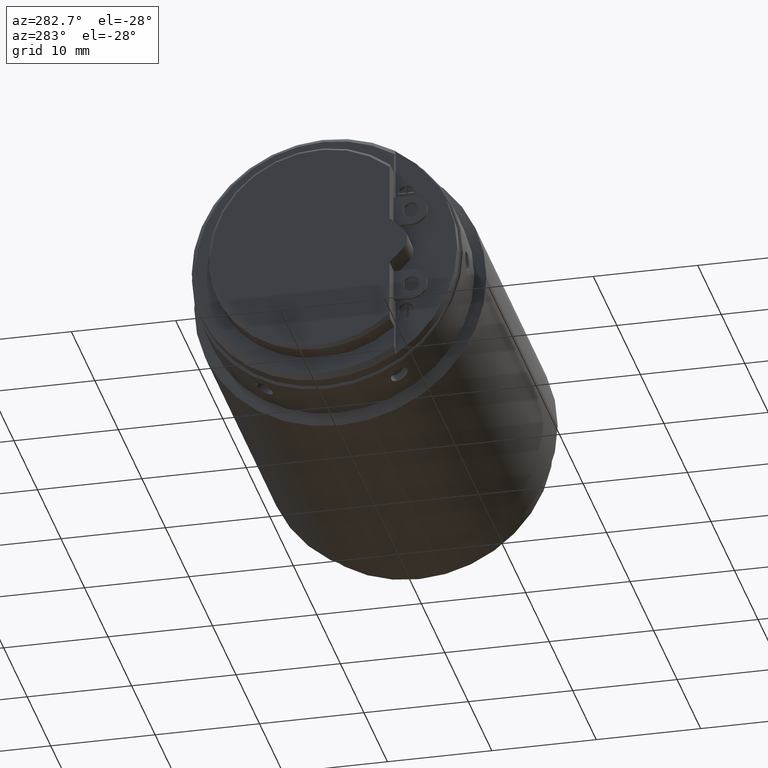
[diagram: clean part render]
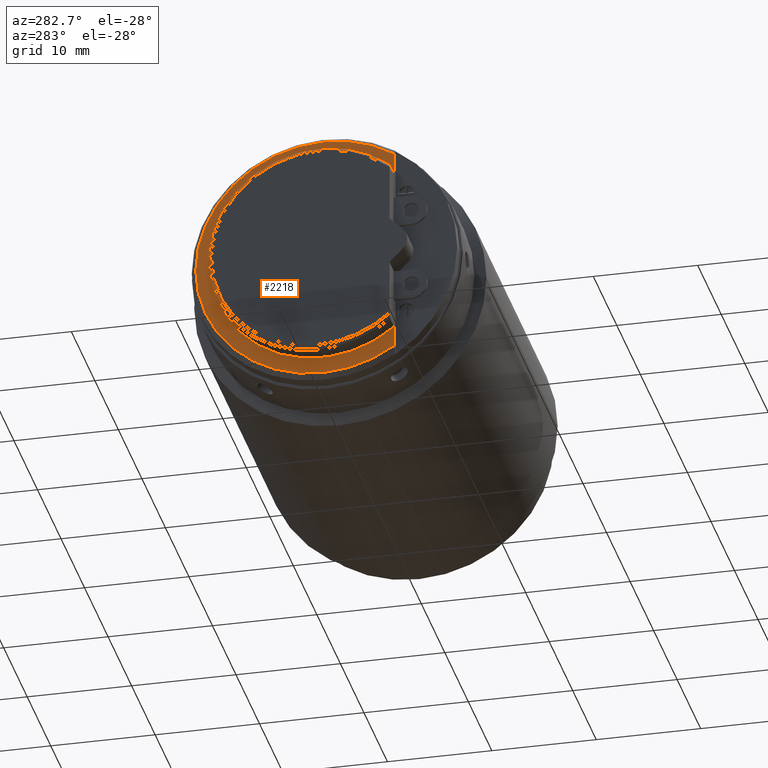
[diagram: same view with one face highlighted and labeled with its STEP entity id]
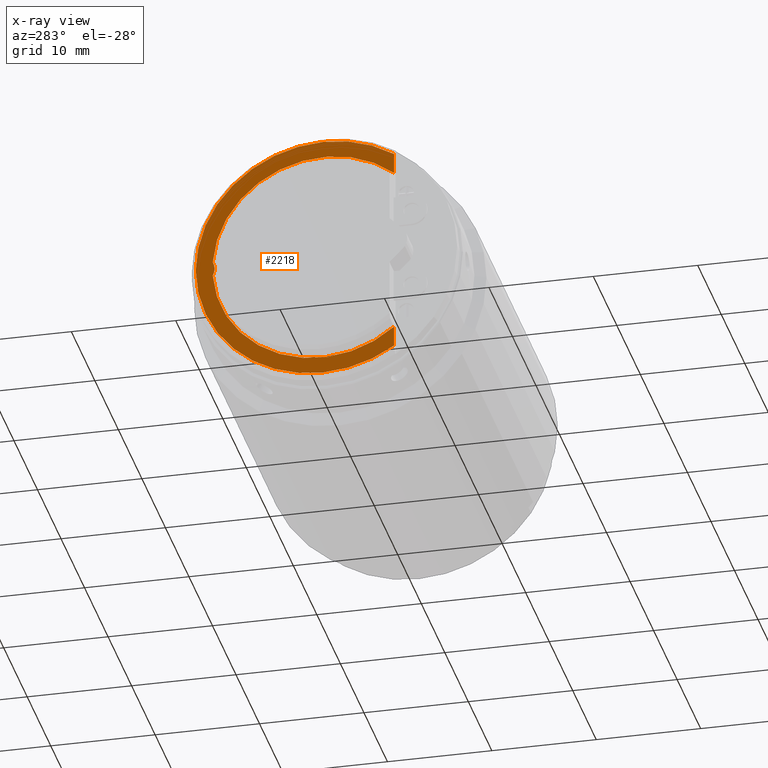
[diagram: x-ray of the same camera — body ghosted, the highlighted face saturated]
A machine part, auxiliary view. The second image highlights one B-rep face of the part: STEP entity #2218.
The next image is the same camera in x-ray: the body ghosted, the highlighted face saturated — about 0% of this face is hidden behind the body in this view.
In plain terms, the highlighted planar face has unit normal (1, 0, 0).
Its self-contained STEP definition (entity closure, byte-faithful):
#31=DIRECTION('',(-9.092667925861E-8,2.757882106921E-7,1.E0));
#32=VECTOR('',#31,1.997745590700E0);
#33=CARTESIAN_POINT('',(-1.7E0,-6.8E0,8.131420370068E0));
#34=LINE('',#33,#32);
#80=CARTESIAN_POINT('',(-1.7E0,0.E0,0.E0));
#81=DIRECTION('',(-1.E0,0.E0,0.E0));
#82=DIRECTION('',(0.E0,-6.415094339623E-1,7.671151452927E-1));
#83=AXIS2_PLACEMENT_3D('',#80,#81,#82);
#85=CARTESIAN_POINT('',(-1.7E0,1.19E1,0.E0));
#86=DIRECTION('',(1.E0,0.E0,0.E0));
#87=DIRECTION('',(0.E0,-8.823529411767E-1,4.705882352938E-1));
#88=AXIS2_PLACEMENT_3D('',#85,#86,#87);
#90=CARTESIAN_POINT('',(-1.7E0,0.E0,0.E0));
#91=DIRECTION('',(-1.E0,0.E0,0.E0));
#92=DIRECTION('',(0.E0,9.977802441731E-1,-6.659267480570E-2));
#93=AXIS2_PLACEMENT_3D('',#90,#91,#92);
#95=DIRECTION('',(1.527810518957E-7,-3.005431658541E-13,-1.E0));
#96=VECTOR('',#95,1.997745016131E0);
#97=CARTESIAN_POINT('',(-1.7E0,-6.8E0,-8.131420540102E0));
#98=LINE('',#97,#96);
#99=CARTESIAN_POINT('',(-1.700000000002E0,0.E0,0.E0));
#100=DIRECTION('',(1.E0,0.E0,0.E0));
#101=DIRECTION('',(0.E0,-5.573770491803E-1,-8.302594925967E-1));
#102=AXIS2_PLACEMENT_3D('',#99,#100,#101);
#104=CARTESIAN_POINT('',(-1.700000000002E0,0.E0,0.E0));
#105=DIRECTION('',(1.E0,0.E0,0.E0));
#106=DIRECTION('',(0.E0,1.E0,0.E0));
#107=AXIS2_PLACEMENT_3D('',#104,#105,#106);
#1985=CARTESIAN_POINT('',(-1.7E0,1.057647058823E1,7.058823529398E-1));
#1986=VERTEX_POINT('',#1985);
#1987=CARTESIAN_POINT('',(-1.7E0,-6.8E0,8.131420540102E0));
#1988=VERTEX_POINT('',#1987);
#1991=CARTESIAN_POINT('',(-1.7E0,1.057647058823E1,-7.058823529398E-1));
#1992=VERTEX_POINT('',#1991);
#1995=CARTESIAN_POINT('',(-1.7E0,-6.8E0,-8.131420540102E0));
#1996=VERTEX_POINT('',#1995);
#1997=CARTESIAN_POINT('',(-1.699999694782E0,-6.800000000001E0,
-1.012916555623E1));
#1998=VERTEX_POINT('',#1997);
#1999=CARTESIAN_POINT('',(-1.700000181648E0,-6.799999449046E0,
1.012916596077E1));
#2000=VERTEX_POINT('',#1999);
#2001=CARTESIAN_POINT('',(-1.700000000002E0,1.22E1,0.E0));
#2002=VERTEX_POINT('',#2001);
#2200=CARTESIAN_POINT('',(-1.7E0,2.699999999999E0,-2.189291228438E-5));
#2201=DIRECTION('',(1.E0,0.E0,0.E0));
#2202=DIRECTION('',(0.E0,1.E0,0.E0));
#2203=AXIS2_PLACEMENT_3D('',#2200,#2201,#2202);
#2204=PLANE('',#2203);
#2205=ORIENTED_EDGE('',*,*,#2193,.T.);
#2206=ORIENTED_EDGE('',*,*,#2182,.T.);
#2208=ORIENTED_EDGE('',*,*,#2207,.T.);
#2210=ORIENTED_EDGE('',*,*,#2209,.T.);
#2212=ORIENTED_EDGE('',*,*,#2211,.T.);
#2214=ORIENTED_EDGE('',*,*,#2213,.T.);
#2215=ORIENTED_EDGE('',*,*,#2125,.F.);
#2216=EDGE_LOOP('',(#2205,#2206,#2208,#2210,#2212,#2214,#2215));
#2217=FACE_OUTER_BOUND('',#2216,.F.);
#2218=ADVANCED_FACE('',(#2217),#2204,.F.);
#84=CIRCLE('',#83,1.06E1);
#89=CIRCLE('',#88,1.5E0);
#94=CIRCLE('',#93,1.06E1);
#103=CIRCLE('',#102,1.22E1);
#108=CIRCLE('',#107,1.22E1);
#2125=EDGE_CURVE('',#1988,#2000,#34,.T.);
#2182=EDGE_CURVE('',#1986,#1992,#89,.T.);
#2193=EDGE_CURVE('',#1988,#1986,#84,.T.);
#2207=EDGE_CURVE('',#1992,#1996,#94,.T.);
#2209=EDGE_CURVE('',#1996,#1998,#98,.T.);
#2211=EDGE_CURVE('',#1998,#2002,#103,.T.);
#2213=EDGE_CURVE('',#2002,#2000,#108,.T.);